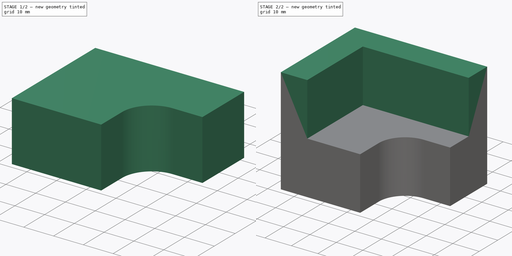
[diagram: build sequence overview — one tinted view per stage of 2, left to right]
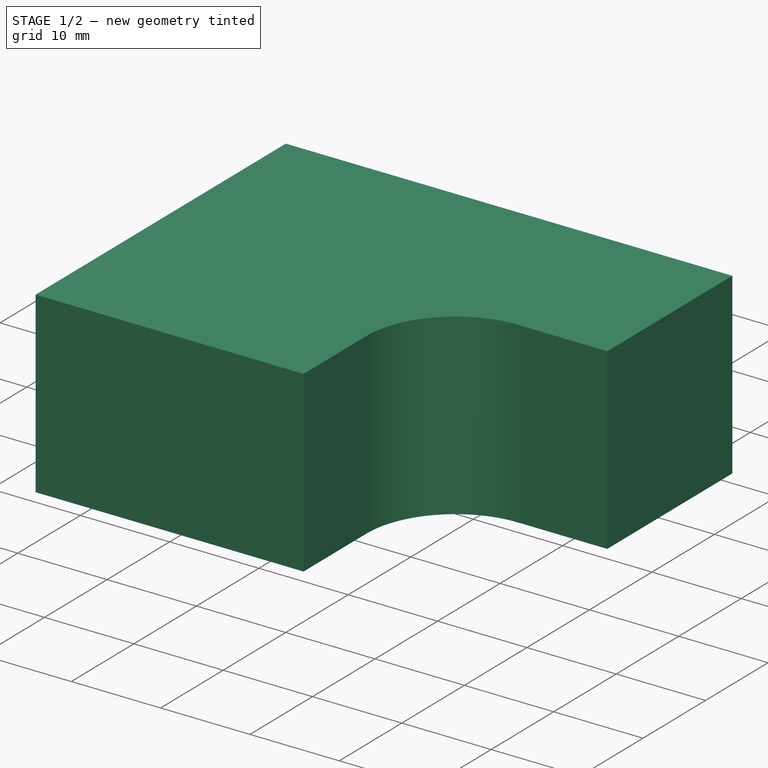
[diagram: stage 1 of 2 — iso view after this stage's code; geometry added in this stage tinted green]
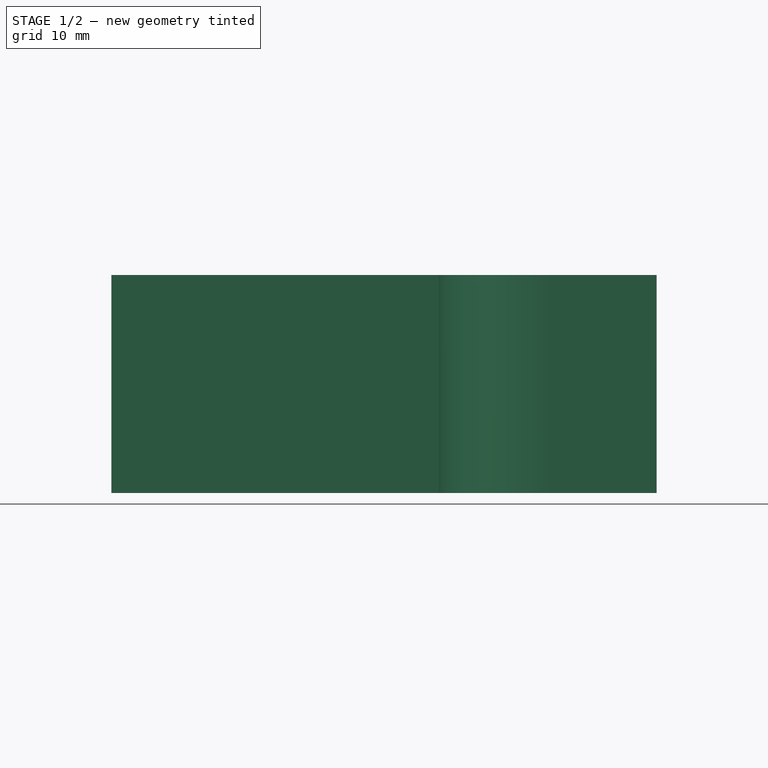
[diagram: stage 1 of 2 — front view after this stage's code; geometry added in this stage tinted green]
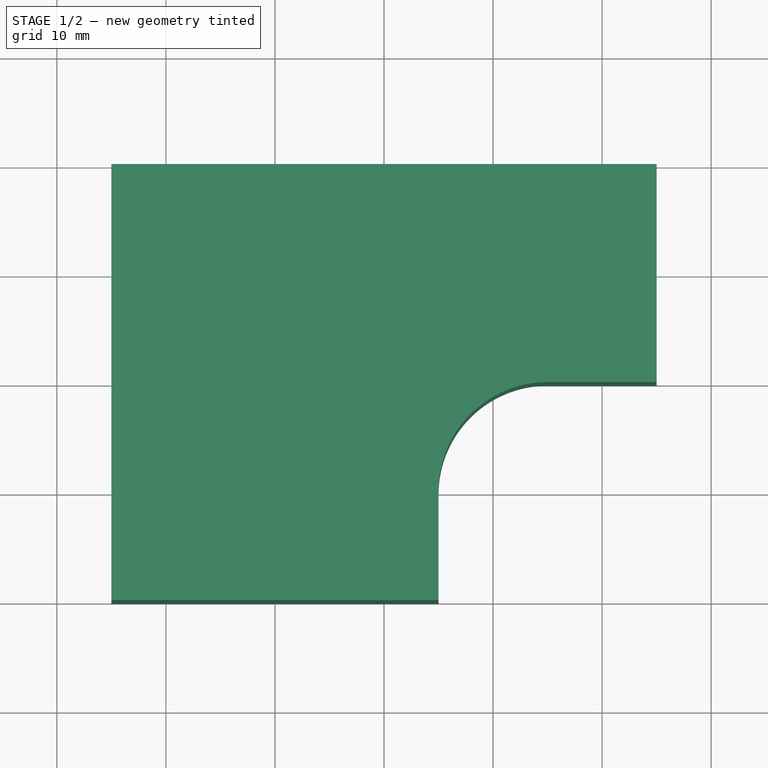
[diagram: stage 1 of 2 — top view after this stage's code; geometry added in this stage tinted green]
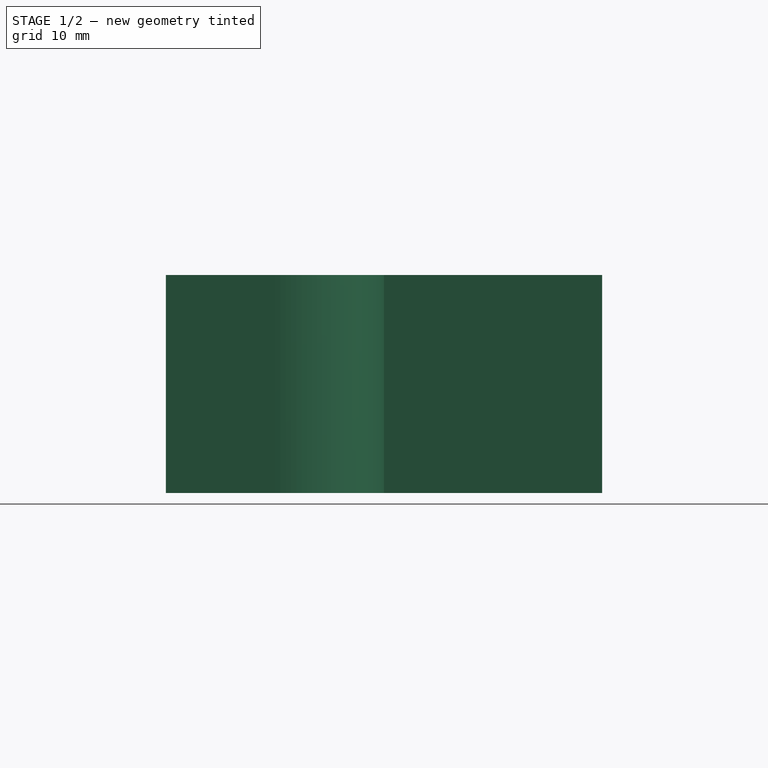
[diagram: stage 1 of 2 — right view after this stage's code; geometry added in this stage tinted green]
FCSTD DOCUMENT  (FreeCAD 1.0R39109 (Git))
Label: 36
License: All rights reserved
LicenseURL: https://en.wikipedia.org/wiki/All_rights_reserved
objects: Sketcher::SketchObject×2, PartDesign::Pad×2, PartDesign::Body×1
note: 11 computed .brp shape members not serialized (recipe doc carries the construction recipe); baked Part::Feature solids carry a one-line shape summary decoded from their .brp

FEATURE [Sketcher::SketchObject] Sketch
  ArcFitTolerance = 1e-06
  AttachmentSupport = -> [XY_Plane]
  FullyConstrained = true
  MakeInternals = false
  MapMode = 5
  sketch-geometry (8):
    g0: LineSegment StartX=-25 StartY=20 StartZ=0 EndX=-25 EndY=-20 EndZ=0
    g1: LineSegment StartX=-25 StartY=-20 StartZ=0 EndX=5 EndY=-20 EndZ=0
    g2: LineSegment StartX=5 StartY=-20 StartZ=0 EndX=5 EndY=-10 EndZ=0
    g3: LineSegment StartX=15 StartY=0 StartZ=0 EndX=25 EndY=0 EndZ=0
    g4: LineSegment StartX=25 StartY=0 StartZ=0 EndX=25 EndY=20 EndZ=0
    g5: LineSegment StartX=25 StartY=20 StartZ=0 EndX=-25 EndY=20 EndZ=0
    g6: ArcOfCircle CenterX=15 CenterY=-10 CenterZ=0 NormalX=0 NormalY=0 NormalZ=1 AngleXU=0 Radius=10 StartAngle=1.5708 EndAngle=3.14159
    g7: GeomPoint [constr] X=5 Y=2e-16 Z=0
  constraints (22):
    c: Coincident(g0,g1)
    c: Horizontal(g1)
    c: Coincident(g1,g2)
    c: Coincident(g3,g4)
    c: Vertical(g4)
    c: Coincident(g4,g5)
    c: Coincident(g5,g0)
    c: Horizontal(g5)
    c: Horizontal(g3)
    c: Vertical(g0)
    c: Vertical(g2)
    c: DistanceX(g1,g1) = 30
    c: DistanceY(g0,g0) = 40
    c: DistanceX(g5,g5) = 50
    c: DistanceY(g4,g4) = 20
    c: PointOnObject(g7,g2)
    c: PointOnObject(g7,g3)
    c: Tangent(g2,g6) = 1.5708
    c: Tangent(g3,g6) = 1.5708
    c: Radius(g6) = 10
    c: Distance(g-1,g5) = 20
    c: Distance(g-1,g0) = 25
FEATURE [PartDesign::Pad] Pad
  Direction = (0,0,1)
  Length = 20
  Length2 = 10
  Profile = -> Sketch
  ReferenceAxis = -> Sketch [N_Axis]
  Refine = true
  Suppressed = false
  Type = 0
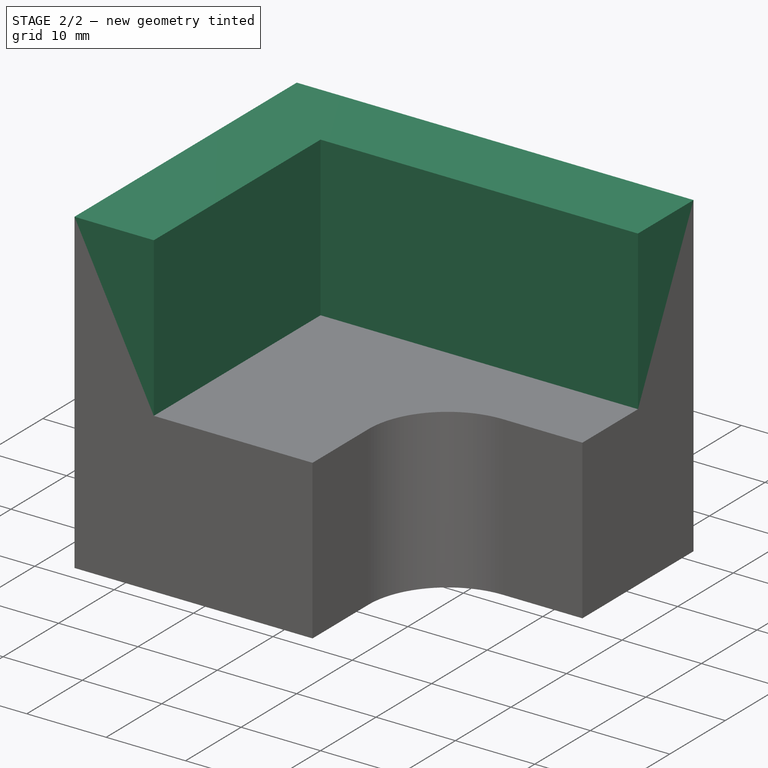
[diagram: stage 2 of 2 — iso view after this stage's code; geometry added in this stage tinted green]
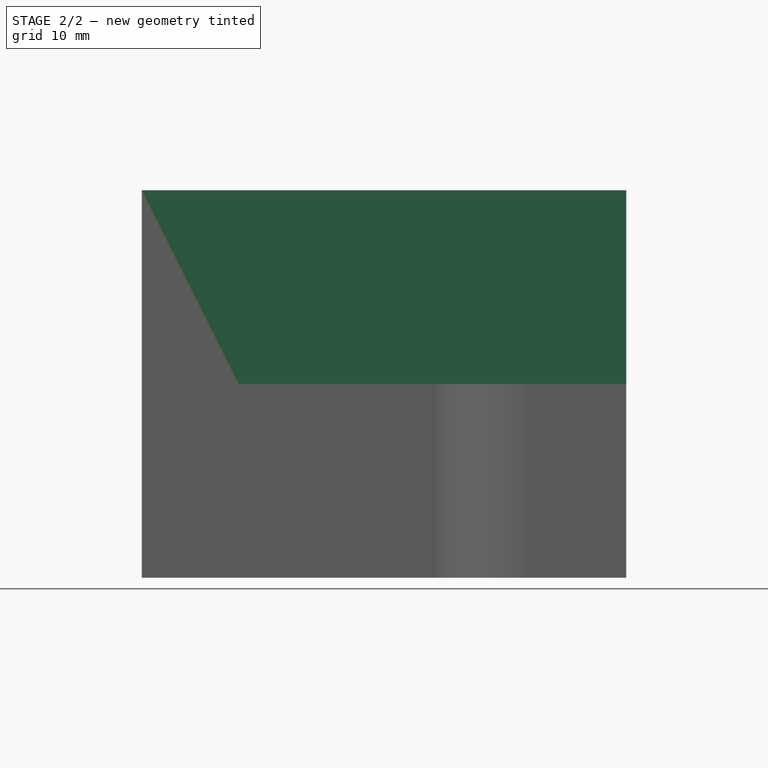
[diagram: stage 2 of 2 — front view after this stage's code; geometry added in this stage tinted green]
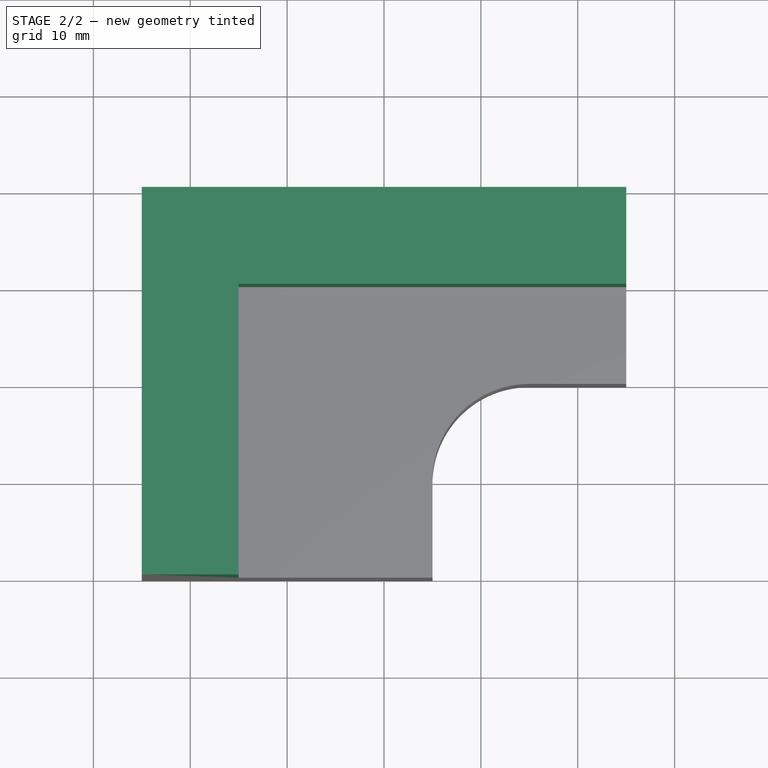
[diagram: stage 2 of 2 — top view after this stage's code; geometry added in this stage tinted green]
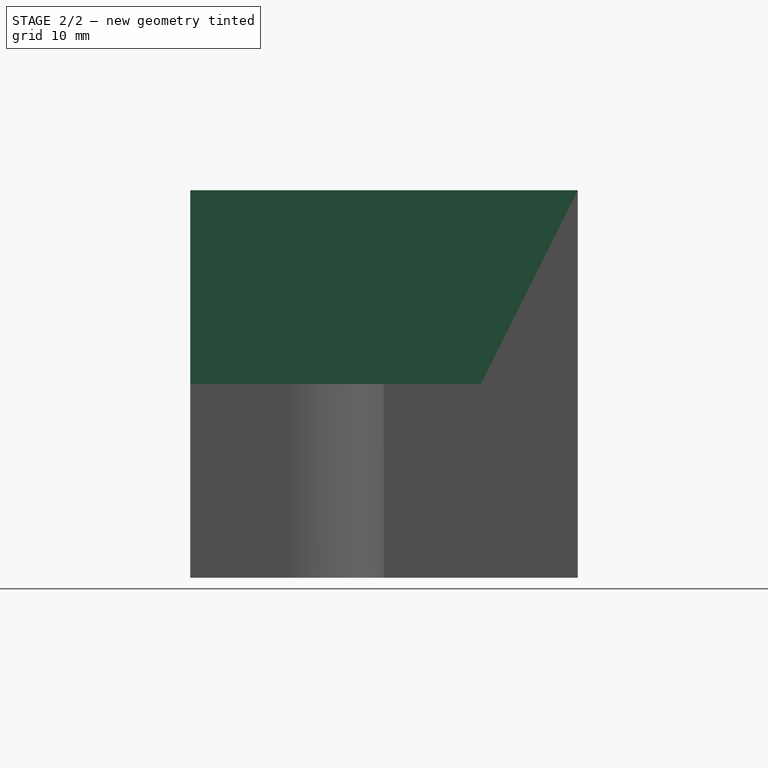
[diagram: stage 2 of 2 — right view after this stage's code; geometry added in this stage tinted green]
FEATURE [Sketcher::SketchObject] Sketch001
  ArcFitTolerance = 1e-06
  AttachmentSupport = -> [Pad]
  ExternalGeometry = -> [Pad]
  FullyConstrained = true
  MakeInternals = false
  MapMode = 5
  Placement = pos=(0,0,20) rot=(0,0,1;0rad)
  sketch-geometry (6):
    g0: LineSegment StartX=-25 StartY=-20 StartZ=0 EndX=-25 EndY=20 EndZ=0
    g1: LineSegment StartX=-25 StartY=20 StartZ=0 EndX=25 EndY=20 EndZ=0
    g2: LineSegment StartX=25 StartY=20 StartZ=0 EndX=25 EndY=10 EndZ=0
    g3: LineSegment StartX=25 StartY=10 StartZ=0 EndX=-15 EndY=10 EndZ=0
    g4: LineSegment StartX=-15 StartY=10 StartZ=0 EndX=-15 EndY=-20 EndZ=0
    g5: LineSegment StartX=-15 StartY=-20 StartZ=0 EndX=-25 EndY=-20 EndZ=0
  constraints (15):
    c: Coincident(g-3,g0)
    c: Coincident(g0,g-4)
    c: Coincident(g0,g1)
    c: Coincident(g1,g2)
    c: Vertical(g2)
    c: Coincident(g2,g3)
    c: Horizontal(g3)
    c: Coincident(g3,g4)
    c: Vertical(g4)
    c: Coincident(g4,g5)
    c: Coincident(g5,g0)
    c: Horizontal(g5)
    c: Coincident(g1,g-4)
    c: DistanceY(g2,g2) = 10
    c: DistanceX(g5,g5) = 10
FEATURE [PartDesign::Pad] Pad001
  BaseFeature = -> Pad
  Direction = (0,0,1)
  Length = 20
  Length2 = 10
  Profile = -> Sketch001
  ReferenceAxis = -> Sketch001 [N_Axis]
  Refine = true
  Suppressed = false
  Type = 0
FEATURE [PartDesign::Body] Body
  AllowCompound = false
  Group = -> [Sketch,Pad,Sketch001,Pad001]
  Origin = -> Origin
  Tip = -> Pad001
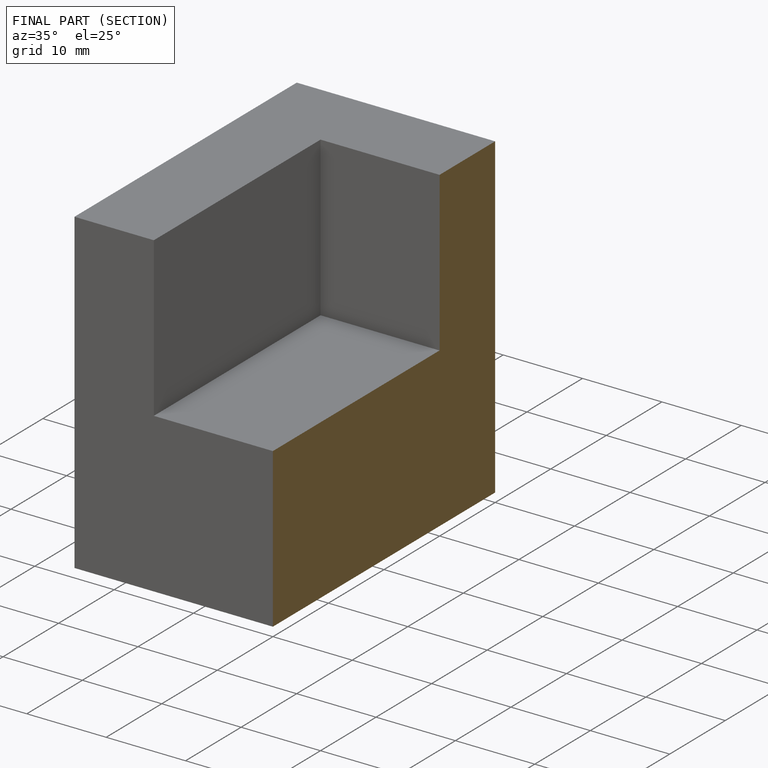
[diagram: finished part — half-section view (interior)]
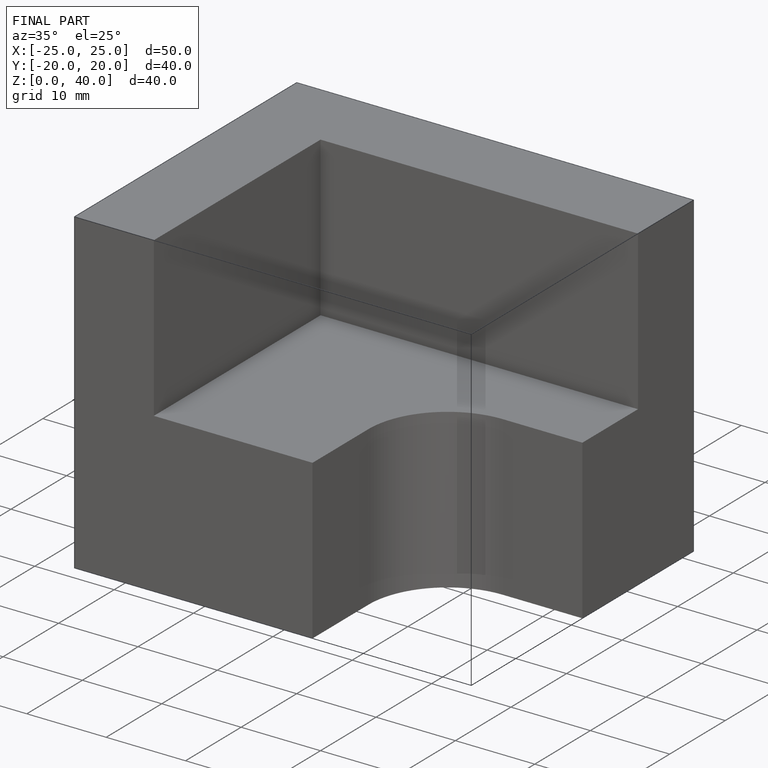
[diagram: finished part — iso view with bounding-box wireframe]
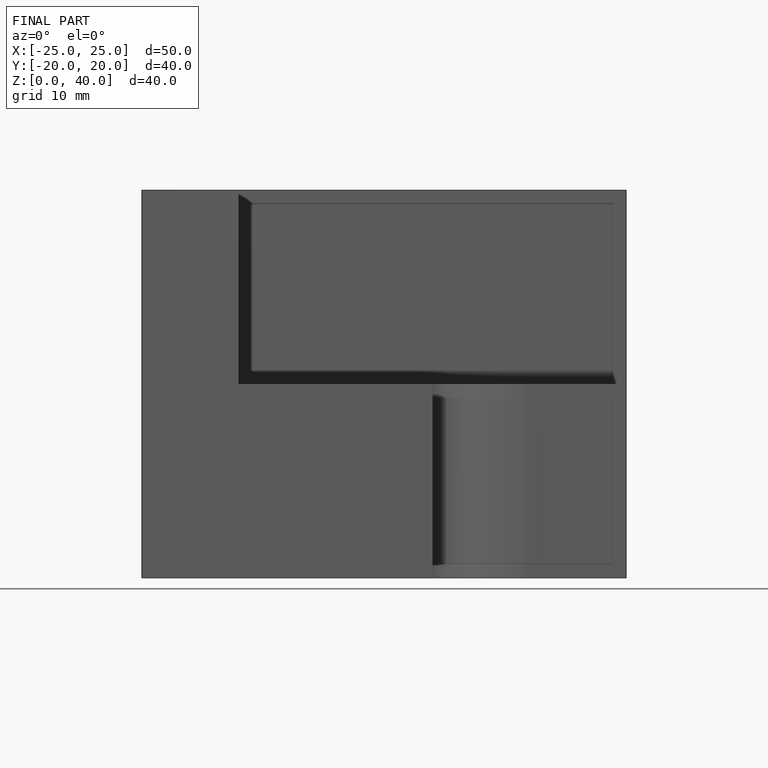
[diagram: finished part — front view with bounding-box wireframe]
